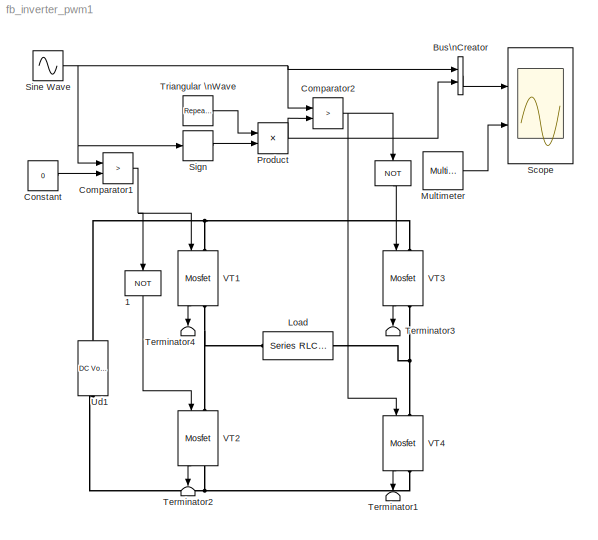
MODEL fb_inverter_pwm1
KIND model
BLOCK [Logic]  
  AllPortsSameDT = off
  Operator = NOT
  OutDataTypeMode = Boolean
  Ports = [1, 1]
BLOCK [Logic]  1
  AllPortsSameDT = off
  Operator = NOT
  OutDataTypeMode = Boolean
  Ports = [1, 1]
BLOCK [BusCreator] Bus\nCreator
  DialogController = Simulink.DDGSource_Bus
  DisplayOption = bar
  Inputs = 2
  Ports = [2, 1]
BLOCK [RelationalOperator] Comparator1
  InputSameDT = off
  LogicDataType = sint(32)
  LogicOutDataTypeMode = Boolean
  Operator = >
  ZeroCross = off
BLOCK [RelationalOperator] Comparator2
  InputSameDT = off
  LogicDataType = sint(32)
  LogicOutDataTypeMode = Boolean
  Operator = >
  ZeroCross = off
BLOCK [Constant] Constant
  Value = 0
BLOCK [Reference] Load  REF=powerlib/Elements/Series RLC Branch
  Capacitance = inf
  Inductance = 0.01
  LConnTagsString = __new0
  LeftPortType = p1
  Measurements = Branch voltage and current
  PhysicalDomain = powersysdomain
  Ports = [0, 0, 0, 0, 0, 1, 1]
  RConnTagsString = __new0
  Resistance = 1
  RightPortType = p1
  SourceBlock = powerlib/Elements/Series RLC Branch
  SourceType = Series RLC Branch
  SubClassName = unknown
BLOCK [Reference] Multimeter  REF=powerlib/Measurements/Multimeter
  AxesSetting = [0,0.1,-100,100]
  Display = 0
  Gain = [1 1]
  L = 2
  OutputType = Complex
  PSBOutputType = 1
  PSBequivalent = 0
  PhasorSimulation = off
  Ports = [0, 1]
  SavedBlockNames = -11
  ShowPortLabels = on
  SourceBlock = powerlib/Measurements/Multimeter
  SourceType = MultimeterPSB
  sel = [1 2]
  yselected = {'Ub: Load','Ib: Load'};
BLOCK [Product] Product
  InputSameDT = off
  OutDataTypeMode = Inherit via internal rule
  Ports = [2, 1]
  SaturateOnIntegerOverflow = off
BLOCK [Scope] Scope
  DataFormat = StructureWithTime
  LimitDataPoints = off
  NumInputPorts = 2
  Ports = [2]
  SampleTime = 2e-4
  TimeRange = 0.04
  YMax = 1.5~150
  YMin = -1.5~-150
  ZoomMode = xonly
BLOCK [Signum] Sign
BLOCK [Sin] Sine Wave
  Amplitude = 0.8
  Frequency = 314
  Ports = [0, 1]
  SampleTime = 0
  SineType = Time based
BLOCK [Terminator] Terminator1
BLOCK [Terminator] Terminator2
BLOCK [Terminator] Terminator3
BLOCK [Terminator] Terminator4
BLOCK [Reference] Triangular \nWave  REF=simulink/Sources/Repeating\nSequence
  Ports = [0, 1]
  ShowPortLabels = on
  SourceBlock = simulink/Sources/Repeating\nSequence
  SourceType = Repeating table
  rep_seq_t = [0 5e-4 1e-3]
  rep_seq_y = [1 0 1]
BLOCK [Reference] Ud1  REF=powerlib/Electrical\nSources/DC Voltage Source
  Amplitude = 100
  Measurements = None
  Ports = [0, 0, 0, 0, 0, 1, 1]
  ShowPortLabels = on
  SourceBlock = powerlib/Electrical\nSources/DC Voltage Source
  SourceType = DC Voltage Source
BLOCK [Reference] VT1  REF=powerlib/Power\nElectronics/Mosfet
  Cs = 1e-6
  IC = 0
  Lon = 1e-7
  Measurements = on
  Ports = [1, 1, 0, 0, 0, 1, 1]
  Rd = .01
  Ron = 0.01
  Rs = 5
  ShowPortLabels = on
  SourceBlock = powerlib/Power\nElectronics/Mosfet
  SourceType = Mosfet
BLOCK [Reference] VT2  REF=powerlib/Power\nElectronics/Mosfet
  Cs = 1e-6
  IC = 0
  Lon = 1e-7
  Measurements = on
  Ports = [1, 1, 0, 0, 0, 1, 1]
  Rd = .01
  Ron = 0.01
  Rs = 5
  ShowPortLabels = on
  SourceBlock = powerlib/Power\nElectronics/Mosfet
  SourceType = Mosfet
BLOCK [Reference] VT3  REF=powerlib/Power\nElectronics/Mosfet
  Cs = 1e-6
  IC = 0
  Lon = 1e-7
  Measurements = on
  Ports = [1, 1, 0, 0, 0, 1, 1]
  Rd = .01
  Ron = 0.01
  Rs = 5
  ShowPortLabels = on
  SourceBlock = powerlib/Power\nElectronics/Mosfet
  SourceType = Mosfet
BLOCK [Reference] VT4  REF=powerlib/Power\nElectronics/Mosfet
  Cs = 1e-6
  IC = 0
  Lon = 1e-7
  Measurements = on
  Ports = [1, 1, 0, 0, 0, 1, 1]
  Rd = .01
  Ron = 0.01
  Rs = 5
  ShowPortLabels = on
  SourceBlock = powerlib/Power\nElectronics/Mosfet
  SourceType = Mosfet
LINE  1:1 -> VT2:1
LINE  :1 -> VT3:1
LINE Bus\nCreator:1 -> Scope:1
NET Comparator1:1 ->  1:1, VT1:1
NET Comparator2:1 ->  :1, VT4:1
LINE Constant:1 -> Comparator1:2
LINE Multimeter:1 -> Scope:2
NET Product:1 -> Bus\nCreator:2, Comparator2:2
LINE Sign:1 -> Product:2
NET Sine Wave:1 -> Bus\nCreator:1, Comparator1:1, Comparator2:1, Sign:1
LINE Triangular \nWave:1 -> Product:1
LINE VT1:1 -> Terminator4:1
LINE VT2:1 -> Terminator2:1
LINE VT3:1 -> Terminator3:1
LINE VT4:1 -> Terminator1:1
PNET net1: Load:LConn1 -- VT1:RConn1 -- VT2:LConn1
PNET net2: Load:RConn1 -- VT3:RConn1 -- VT4:LConn1
PNET net3: Ud1:LConn1 -- VT2:RConn1 -- VT4:RConn1
PNET net4: Ud1:RConn1 -- VT1:LConn1 -- VT3:LConn1
note: NET lines group one-source signal fan-out (src -> all destinations, sorted); 1:1 wires keep LINE; PNET lines group multi-terminal physical nets as a canonical sorted terminal list (undirected conserving connections); 2-terminal nets keep the pairwise PLINE form
